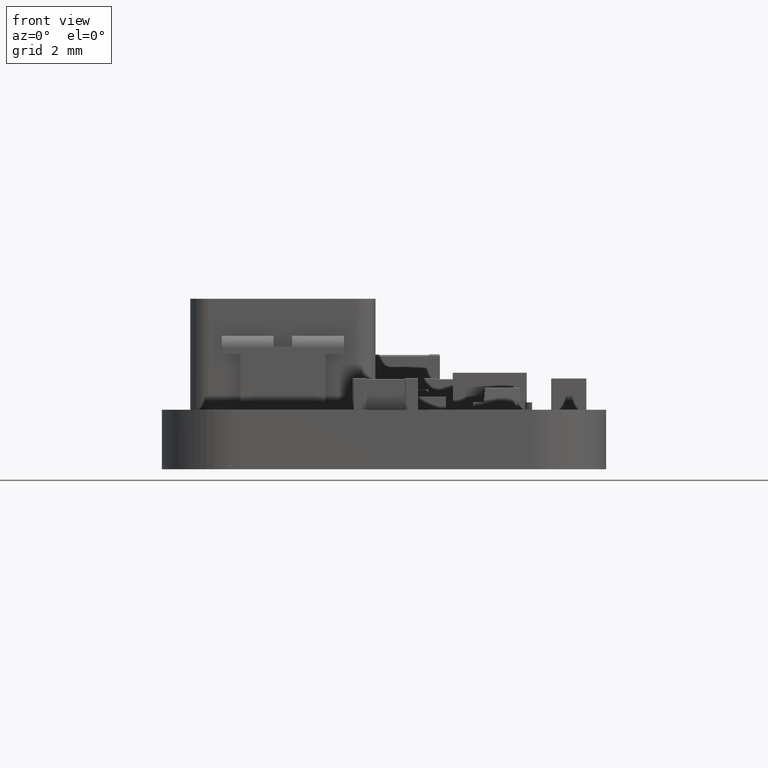
[diagram: clean part render]
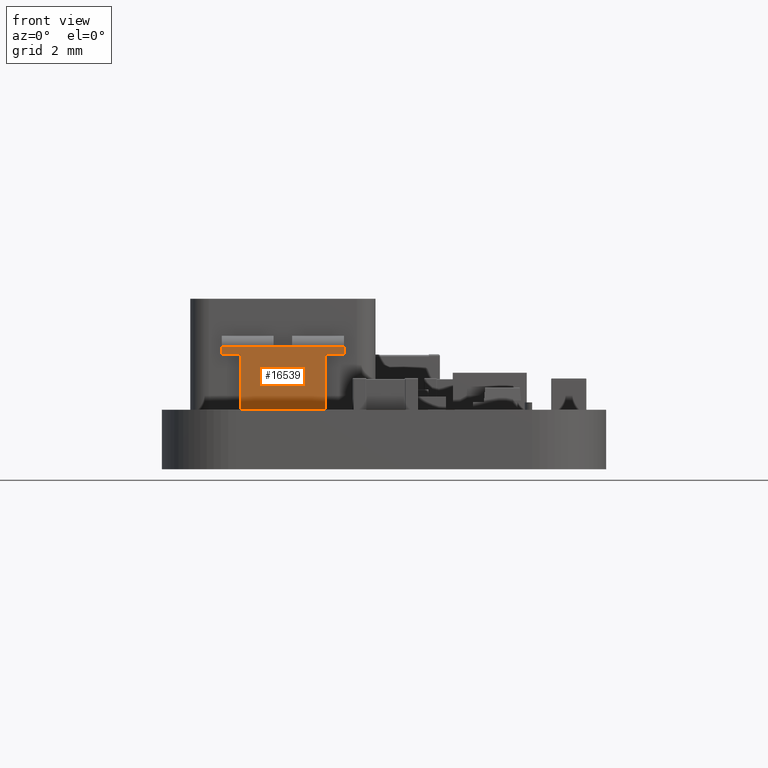
[diagram: same view with one face highlighted and labeled with its STEP entity id]
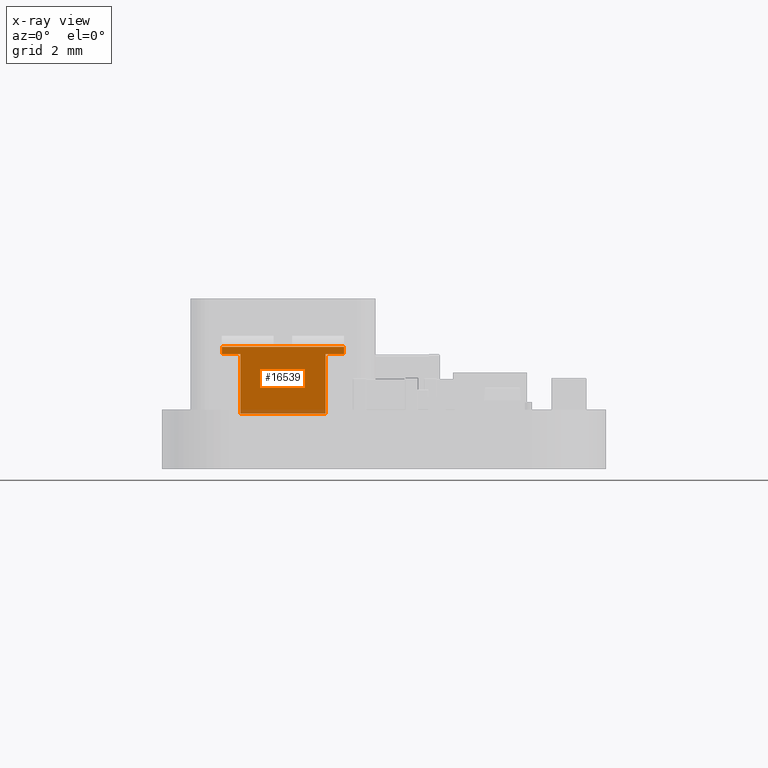
[diagram: x-ray of the same camera — body ghosted, the highlighted face saturated]
A machine part, front view. The second image highlights one B-rep face of the part: STEP entity #16539.
The next image is the same camera in x-ray: the body ghosted, the highlighted face saturated — about 6% of this face is hidden behind the body in this view.
In plain terms, the highlighted planar face has unit normal (-0, -1, 0).
Its self-contained STEP definition (entity closure, byte-faithful):
#15020 = VERTEX_POINT('',#15021);
#15021 = CARTESIAN_POINT('',(0.3,1.7,-0.85));
#15028 = EDGE_CURVE('',#15020,#15029,#15031,.T.);
#15029 = VERTEX_POINT('',#15030);
#15030 = CARTESIAN_POINT('',(0.3,1.7,-2.25));
#15031 = LINE('',#15032,#15033);
#15032 = CARTESIAN_POINT('',(0.3,1.7,-3.325));
#15033 = VECTOR('',#15034,1.);
#15034 = DIRECTION('',(-0.,3.364312195834E-16,-1.));
#15055 = VERTEX_POINT('',#15056);
#15056 = CARTESIAN_POINT('',(0.3,1.5,-0.85));
#15062 = EDGE_CURVE('',#15055,#15020,#15063,.T.);
#15063 = LINE('',#15064,#15065);
#15064 = CARTESIAN_POINT('',(0.3,2.,-0.85));
#15065 = VECTOR('',#15066,1.);
#15066 = DIRECTION('',(-0.,1.,1.387778780781E-16));
#15186 = VERTEX_POINT('',#15187);
#15187 = CARTESIAN_POINT('',(0.3,1.7,-2.75));
#15235 = VERTEX_POINT('',#15236);
#15236 = CARTESIAN_POINT('',(0.3,1.7,-4.15));
#15243 = EDGE_CURVE('',#15235,#15244,#15246,.T.);
#15244 = VERTEX_POINT('',#15245);
#15245 = CARTESIAN_POINT('',(0.3,1.5,-4.15));
#15246 = LINE('',#15247,#15248);
#15247 = CARTESIAN_POINT('',(0.3,1.5,-4.15));
#15248 = VECTOR('',#15249,1.);
#15249 = DIRECTION('',(-0.,-1.,-1.110223024625E-15));
#15285 = EDGE_CURVE('',#15186,#15235,#15286,.T.);
#15286 = LINE('',#15287,#15288);
#15287 = CARTESIAN_POINT('',(0.3,1.7,-3.325));
#15288 = VECTOR('',#15289,1.);
#15289 = DIRECTION('',(-0.,3.364312195834E-16,-1.));
#16539 = ADVANCED_FACE('',(#16540),#16590,.T.);
#16540 = FACE_BOUND('',#16541,.T.);
#16541 = EDGE_LOOP('',(#16542,#16543,#16549,#16550,#16551,#16559,#16567,
    #16575,#16583,#16589));
#16542 = ORIENTED_EDGE('',*,*,#15285,.F.);
#16543 = ORIENTED_EDGE('',*,*,#16544,.T.);
#16544 = EDGE_CURVE('',#15186,#15029,#16545,.T.);
#16545 = LINE('',#16546,#16547);
#16546 = CARTESIAN_POINT('',(0.3,1.7,-2.5));
#16547 = VECTOR('',#16548,1.);
#16548 = DIRECTION('',(-0.,-0.,1.));
#16549 = ORIENTED_EDGE('',*,*,#15028,.F.);
#16550 = ORIENTED_EDGE('',*,*,#15062,.F.);
#16551 = ORIENTED_EDGE('',*,*,#16552,.T.);
#16552 = EDGE_CURVE('',#15055,#16553,#16555,.T.);
#16553 = VERTEX_POINT('',#16554);
#16554 = CARTESIAN_POINT('',(0.3,1.5,-1.35));
#16555 = LINE('',#16556,#16557);
#16556 = CARTESIAN_POINT('',(0.3,1.5,-2.5));
#16557 = VECTOR('',#16558,1.);
#16558 = DIRECTION('',(0.,0.,-1.));
#16559 = ORIENTED_EDGE('',*,*,#16560,.T.);
#16560 = EDGE_CURVE('',#16553,#16561,#16563,.T.);
#16561 = VERTEX_POINT('',#16562);
#16562 = CARTESIAN_POINT('',(0.3,-0.1,-1.35));
#16563 = LINE('',#16564,#16565);
#16564 = CARTESIAN_POINT('',(0.3,1.098148148148,-1.35));
#16565 = VECTOR('',#16566,1.);
#16566 = DIRECTION('',(-0.,-1.,-0.));
#16567 = ORIENTED_EDGE('',*,*,#16568,.T.);
#16568 = EDGE_CURVE('',#16561,#16569,#16571,.T.);
#16569 = VERTEX_POINT('',#16570);
#16570 = CARTESIAN_POINT('',(0.3,-0.1,-3.65));
#16571 = LINE('',#16572,#16573);
#16572 = CARTESIAN_POINT('',(0.3,-0.1,-2.5));
#16573 = VECTOR('',#16574,1.);
#16574 = DIRECTION('',(0.,0.,-1.));
#16575 = ORIENTED_EDGE('',*,*,#16576,.T.);
#16576 = EDGE_CURVE('',#16569,#16577,#16579,.T.);
#16577 = VERTEX_POINT('',#16578);
#16578 = CARTESIAN_POINT('',(0.3,1.5,-3.65));
#16579 = LINE('',#16580,#16581);
#16580 = CARTESIAN_POINT('',(0.3,1.098148148148,-3.65));
#16581 = VECTOR('',#16582,1.);
#16582 = DIRECTION('',(0.,1.,0.));
#16583 = ORIENTED_EDGE('',*,*,#16584,.T.);
#16584 = EDGE_CURVE('',#16577,#15244,#16585,.T.);
#16585 = LINE('',#16586,#16587);
#16586 = CARTESIAN_POINT('',(0.3,1.5,-2.5));
#16587 = VECTOR('',#16588,1.);
#16588 = DIRECTION('',(0.,0.,-1.));
#16589 = ORIENTED_EDGE('',*,*,#15243,.F.);
#16590 = PLANE('',#16591);
#16591 = AXIS2_PLACEMENT_3D('',#16592,#16593,#16594);
#16592 = CARTESIAN_POINT('',(0.3,1.098148148148,-2.5));
#16593 = DIRECTION('',(1.,-0.,0.));
#16594 = DIRECTION('',(0.,0.,-1.));